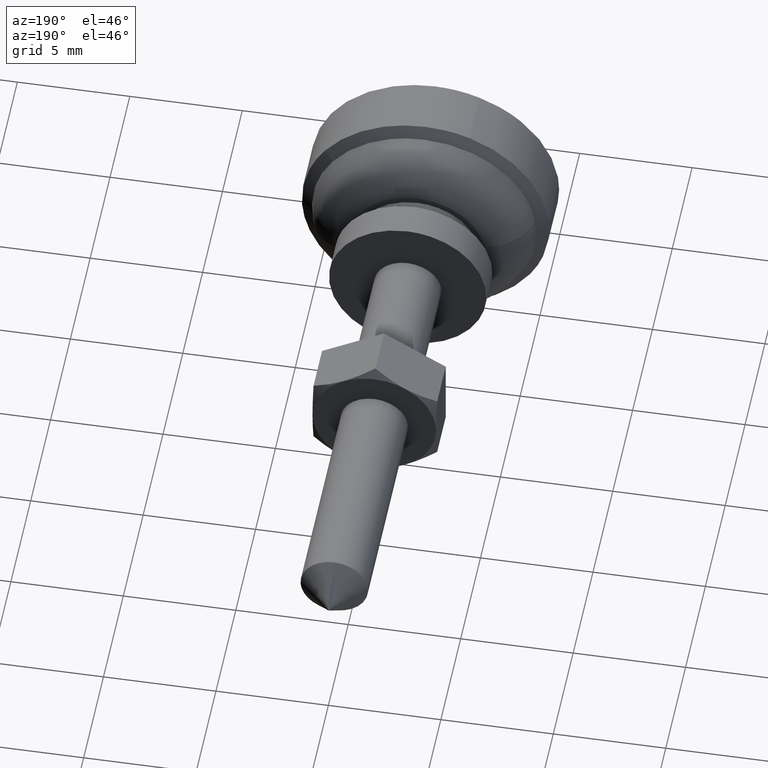
[diagram: clean part render]
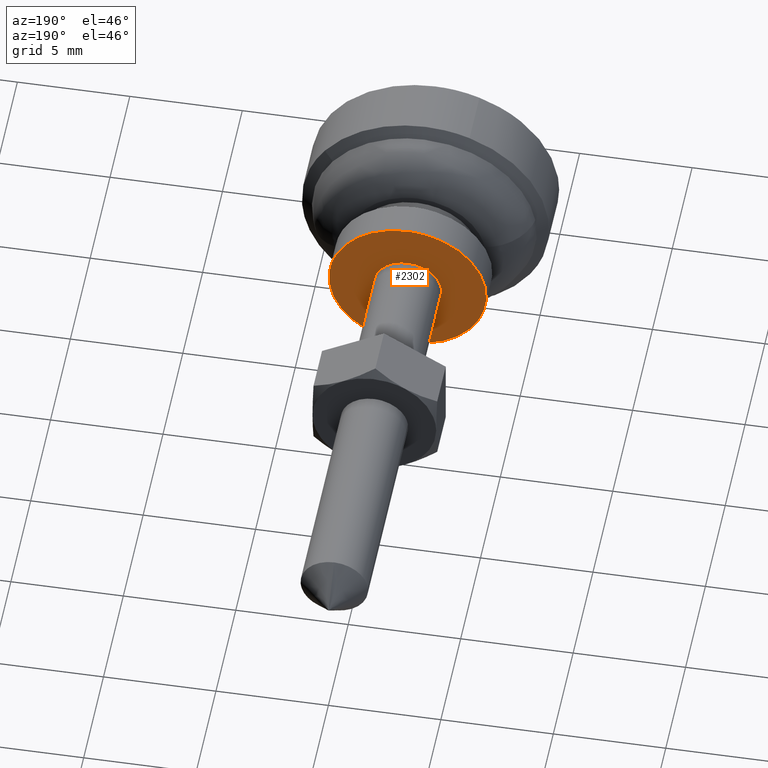
[diagram: same view with one face highlighted and labeled with its STEP entity id]
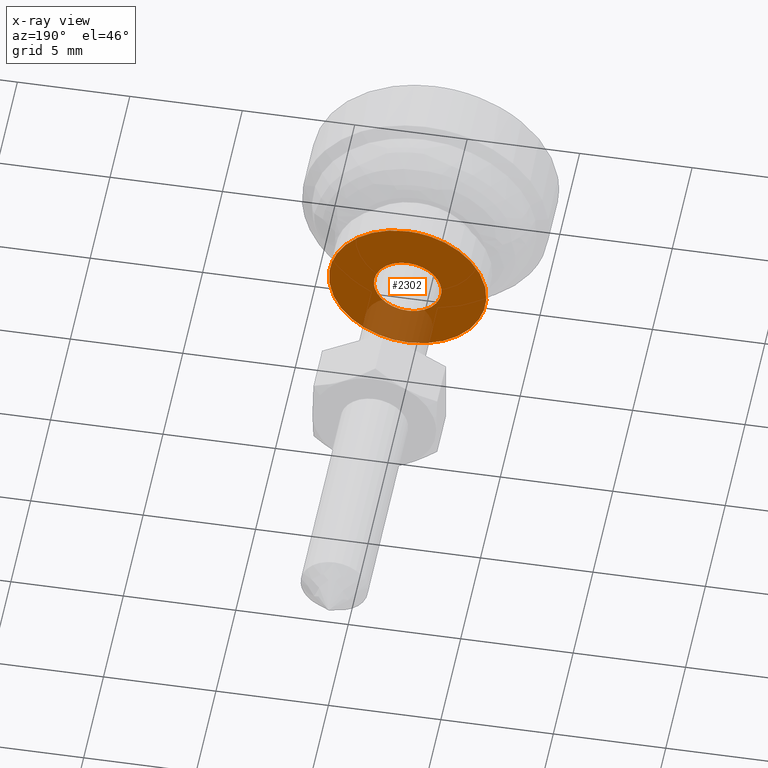
[diagram: x-ray of the same camera — body ghosted, the highlighted face saturated]
A machine part, auxiliary view. The second image highlights one B-rep face of the part: STEP entity #2302.
The next image is the same camera in x-ray: the body ghosted, the highlighted face saturated — about 19% of this face is hidden behind the body in this view.
In plain terms, the highlighted face is a freeform B-spline surface patch.
Its self-contained STEP definition (entity closure, byte-faithful):
#785=CARTESIAN_POINT('',(-1.387779E-016,-1.497202197631775,-0.091572809319045));
#786=VERTEX_POINT('',#785);
#792=CARTESIAN_POINT('',(0.0,0.0,-1.500000000000000));
#793=VERTEX_POINT('',#792);
#794=CARTESIAN_POINT('',(0.0,0.0,-1.500000000000000));
#795=CARTESIAN_POINT('',(0.0,-1.411059100326896,-1.500000000000001));
#796=CARTESIAN_POINT('',(-1.387779E-016,-1.497202197631775,-0.091572809319045));
#804=(BOUNDED_CURVE()B_SPLINE_CURVE(2,(#794,#795,#796),.UNSPECIFIED.,.F.,.U.)B_SPLINE_CURVE_WITH_KNOTS((3,3),(0.500000000000000,0.739332962238106),.UNSPECIFIED.)CURVE()GEOMETRIC_REPRESENTATION_ITEM()RATIONAL_B_SPLINE_CURVE((1.0,0.719603993287691,0.976072041664924))REPRESENTATION_ITEM(''));
#805=EDGE_CURVE('',#793,#786,#804,.T.);
#807=CARTESIAN_POINT('',(-1.419714E-016,1.489514289541224,0.177051352021105));
#808=VERTEX_POINT('',#807);
#809=CARTESIAN_POINT('',(-1.419714E-016,1.489514289541225,0.177051352021105));
#810=CARTESIAN_POINT('',(0.0,1.500000000000000,0.088836179514213));
#811=CARTESIAN_POINT('',(0.0,1.500000000000000,0.0));
#812=CARTESIAN_POINT('',(0.0,1.500000000000000,-1.500000000000000));
#813=CARTESIAN_POINT('',(0.0,0.0,-1.500000000000000));
#821=(BOUNDED_CURVE()B_SPLINE_CURVE(2,(#809,#810,#811,#812,#813),.UNSPECIFIED.,.F.,.U.)B_SPLINE_CURVE_WITH_KNOTS((3,2,3),(0.229562473507482,0.250000000000000,0.500000000000000),.UNSPECIFIED.)CURVE()GEOMETRIC_REPRESENTATION_ITEM()RATIONAL_B_SPLINE_CURVE((0.956026754171888,0.976055948324085,1.0,0.707106781186548,1.0))REPRESENTATION_ITEM(''));
#822=EDGE_CURVE('',#808,#793,#821,.T.);
#866=CARTESIAN_POINT('',(0.0,0.0,1.500000000000000));
#867=VERTEX_POINT('',#866);
#868=CARTESIAN_POINT('',(0.0,0.0,1.500000000000000));
#869=CARTESIAN_POINT('',(0.0,1.332261788862259,1.500000000000001));
#870=CARTESIAN_POINT('',(-1.419714E-016,1.489514289541225,0.177051352021105));
#878=(BOUNDED_CURVE()B_SPLINE_CURVE(2,(#868,#869,#870),.UNSPECIFIED.,.F.,.U.)B_SPLINE_CURVE_WITH_KNOTS((3,3),(0.0,0.229562473507482),.UNSPECIFIED.)CURVE()GEOMETRIC_REPRESENTATION_ITEM()RATIONAL_B_SPLINE_CURVE((1.0,0.731050832862462,0.956026754171888))REPRESENTATION_ITEM(''));
#879=EDGE_CURVE('',#867,#808,#878,.T.);
#881=CARTESIAN_POINT('',(-1.387779E-016,-1.497202197631775,-0.091572809319045));
#882=CARTESIAN_POINT('',(0.0,-1.500000000000000,-0.045829144964690));
#883=CARTESIAN_POINT('',(0.0,-1.500000000000000,0.0));
#884=CARTESIAN_POINT('',(0.0,-1.500000000000000,1.500000000000000));
#885=CARTESIAN_POINT('',(0.0,0.0,1.500000000000000));
#893=(BOUNDED_CURVE()B_SPLINE_CURVE(2,(#881,#882,#883,#884,#885),.UNSPECIFIED.,.F.,.U.)B_SPLINE_CURVE_WITH_KNOTS((3,2,3),(0.739332962238105,0.750000000000000,1.0),.UNSPECIFIED.)CURVE()GEOMETRIC_REPRESENTATION_ITEM()RATIONAL_B_SPLINE_CURVE((0.976072041664923,0.987502787898856,1.0,0.707106781186548,1.0))REPRESENTATION_ITEM(''));
#894=EDGE_CURVE('',#786,#867,#893,.T.);
#1719=CARTESIAN_POINT('',(-1.318390E-016,3.493472072487337,-0.213665342838485));
#1720=VERTEX_POINT('',#1719);
#1726=CARTESIAN_POINT('',(0.0,0.0,-3.500000000000000));
#1727=VERTEX_POINT('',#1726);
#1728=CARTESIAN_POINT('',(0.0,0.0,-3.500000000000000));
#1729=CARTESIAN_POINT('',(0.0,3.292475526179155,-3.499999999999999));
#1730=CARTESIAN_POINT('',(-1.318390E-016,3.493472072487336,-0.213665342838485));
#1738=(BOUNDED_CURVE()B_SPLINE_CURVE(2,(#1728,#1729,#1730),.UNSPECIFIED.,.F.,.U.)B_SPLINE_CURVE_WITH_KNOTS((3,3),(0.500000000000000,0.739333186751394),.UNSPECIFIED.)CURVE()GEOMETRIC_REPRESENTATION_ITEM()RATIONAL_B_SPLINE_CURVE((1.0,0.719603730254012,0.976072522840111))REPRESENTATION_ITEM(''));
#1739=EDGE_CURVE('',#1727,#1720,#1738,.T.);
#1741=CARTESIAN_POINT('',(3.904214E-017,-3.475533923834870,0.413114928620007));
#1742=VERTEX_POINT('',#1741);
#1743=CARTESIAN_POINT('',(3.904214E-017,-3.475533923834870,0.413114928620007));
#1744=CARTESIAN_POINT('',(0.0,-3.500000000000000,0.207281946580491));
#1745=CARTESIAN_POINT('',(0.0,-3.500000000000000,0.0));
#1746=CARTESIAN_POINT('',(0.0,-3.500000000000000,-3.500000000000000));
#1747=CARTESIAN_POINT('',(0.0,0.0,-3.500000000000000));
#1755=(BOUNDED_CURVE()B_SPLINE_CURVE(2,(#1743,#1744,#1745,#1746,#1747),.UNSPECIFIED.,.F.,.U.)B_SPLINE_CURVE_WITH_KNOTS((3,2,3),(0.229562711429822,0.250000000000000,0.500000000000000),.UNSPECIFIED.)CURVE()GEOMETRIC_REPRESENTATION_ITEM()RATIONAL_B_SPLINE_CURVE((0.956027220509941,0.976056227067445,1.0,0.707106781186547,1.0))REPRESENTATION_ITEM(''));
#1756=EDGE_CURVE('',#1742,#1727,#1755,.T.);
#1804=CARTESIAN_POINT('',(0.0,0.0,3.500000000000000));
#1805=VERTEX_POINT('',#1804);
#1806=CARTESIAN_POINT('',(0.0,0.0,3.500000000000000));
#1807=CARTESIAN_POINT('',(0.0,-3.108615247782332,3.500000000000000));
#1808=CARTESIAN_POINT('',(3.904214E-017,-3.475533923834870,0.413114928620007));
#1816=(BOUNDED_CURVE()B_SPLINE_CURVE(2,(#1806,#1807,#1808),.UNSPECIFIED.,.F.,.U.)B_SPLINE_CURVE_WITH_KNOTS((3,3),(0.0,0.229562711429822),.UNSPECIFIED.)CURVE()GEOMETRIC_REPRESENTATION_ITEM()RATIONAL_B_SPLINE_CURVE((1.0,0.731050554119103,0.956027220509941))REPRESENTATION_ITEM(''));
#1817=EDGE_CURVE('',#1805,#1742,#1816,.T.);
#1819=CARTESIAN_POINT('',(-1.318390E-016,3.493472072487336,-0.213665342838485));
#1820=CARTESIAN_POINT('',(0.0,3.500000000000001,-0.106932392405914));
#1821=CARTESIAN_POINT('',(0.0,3.500000000000000,0.0));
#1822=CARTESIAN_POINT('',(0.0,3.500000000000000,3.500000000000000));
#1823=CARTESIAN_POINT('',(0.0,0.0,3.500000000000000));
#1831=(BOUNDED_CURVE()B_SPLINE_CURVE(2,(#1819,#1820,#1821,#1822,#1823),.UNSPECIFIED.,.F.,.U.)B_SPLINE_CURVE_WITH_KNOTS((3,2,3),(0.739333186751394,0.750000000000000,1.0),.UNSPECIFIED.)CURVE()GEOMETRIC_REPRESENTATION_ITEM()RATIONAL_B_SPLINE_CURVE((0.976072522840111,0.987503050932536,1.0,0.707106781186547,1.0))REPRESENTATION_ITEM(''));
#1832=EDGE_CURVE('',#1720,#1805,#1831,.T.);
#2285=CARTESIAN_POINT('',(0.0,-3.849586525874265,3.849649986432642));
#2286=CARTESIAN_POINT('',(0.0,3.849564808921941,3.849649986432642));
#2287=CARTESIAN_POINT('',(0.0,-3.849586525874265,-3.849650174187273));
#2288=CARTESIAN_POINT('',(0.0,3.849564808921941,-3.849650174187273));
#2289=B_SPLINE_SURFACE_WITH_KNOTS('',1,1,((#2285,#2287),(#2286,#2288)),.UNSPECIFIED.,.F.,.F.,.U.,(2,2),(2,2),(0.0,7.699151334796206),(0.0,7.699300160619915),.UNSPECIFIED.);
#2290=ORIENTED_EDGE('',*,*,#1817,.T.);
#2291=ORIENTED_EDGE('',*,*,#1756,.T.);
#2292=ORIENTED_EDGE('',*,*,#1739,.T.);
#2293=ORIENTED_EDGE('',*,*,#1832,.T.);
#2294=EDGE_LOOP('',(#2290,#2291,#2292,#2293));
#2295=FACE_OUTER_BOUND('',#2294,.T.);
#2296=ORIENTED_EDGE('',*,*,#805,.T.);
#2297=ORIENTED_EDGE('',*,*,#894,.T.);
#2298=ORIENTED_EDGE('',*,*,#879,.T.);
#2299=ORIENTED_EDGE('',*,*,#822,.T.);
#2300=EDGE_LOOP('',(#2296,#2297,#2298,#2299));
#2301=FACE_BOUND('',#2300,.T.);
#2302=ADVANCED_FACE('',(#2295,#2301),#2289,.F.);